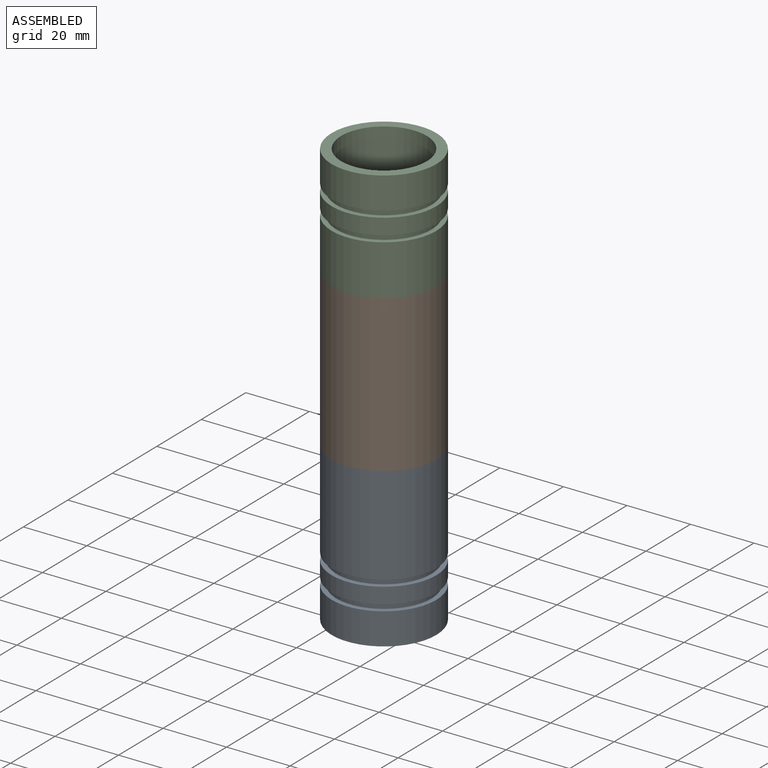
[diagram: assembled view]
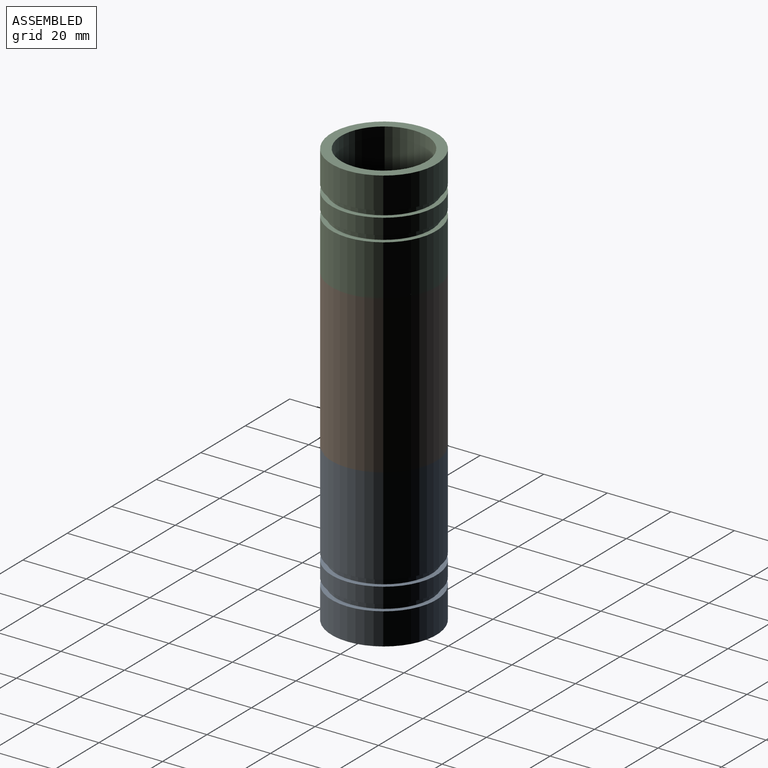
[diagram: assembled view, second angle]
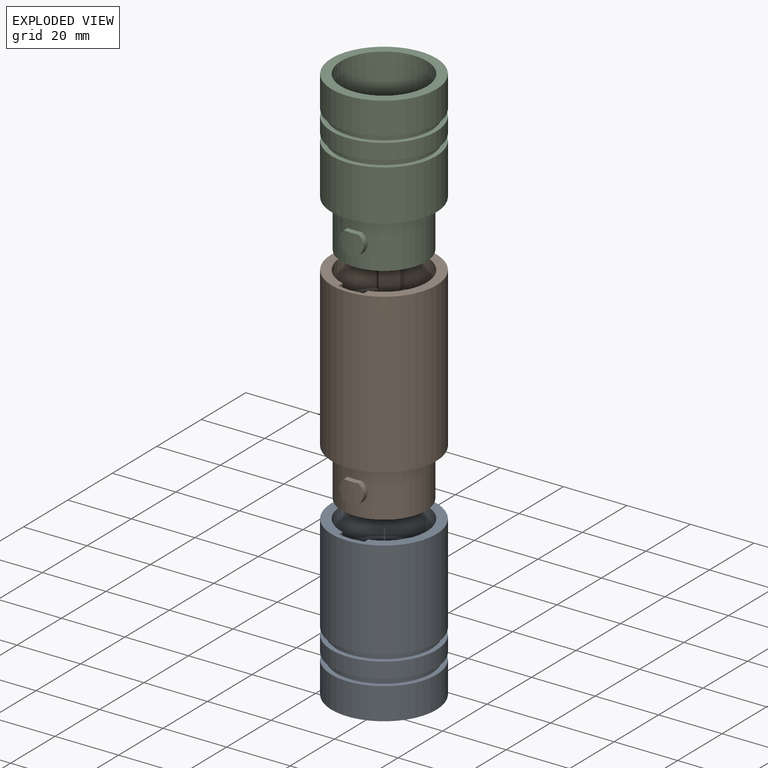
[diagram: exploded view]
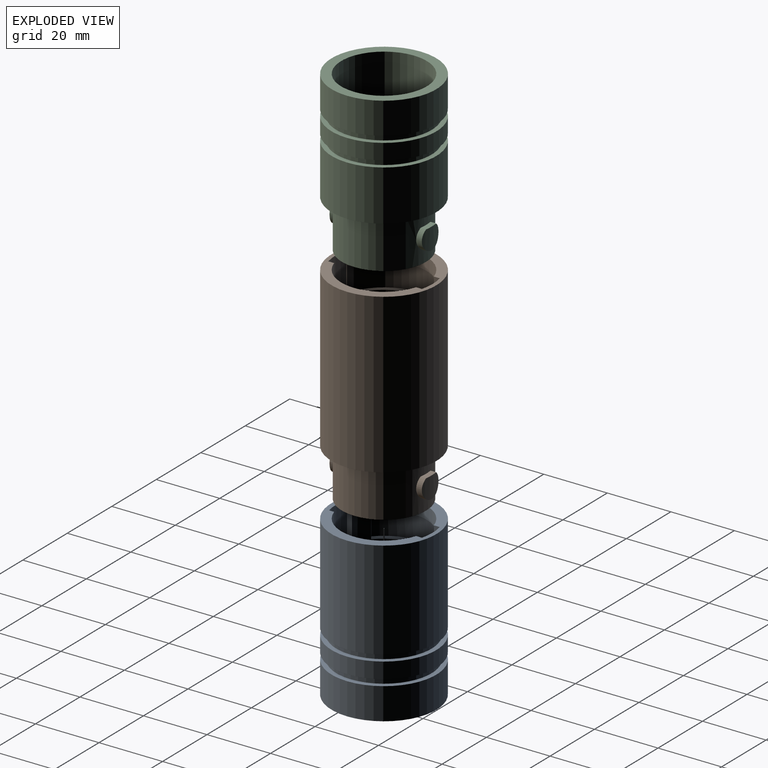
[diagram: exploded view, second angle]
ASSEMBLY  parts=3 mates=2
PART A: 32 faces, bbox 33x33x50 mm
  f0: cylinder r=13.5mm len=32.5mm, axis (0,0,-1), area 2756.7mm2, adj f6,f23
  f1: cylinder r=13.5mm len=27mm, axis (0,0,-1), area 544mm2, adj f2,f3,f14,f16,f17,f18,f20,f22
  f2: cylinder r=13.5mm len=23.15mm, axis (0,0,-1), area 115.2mm2, adj f1,f3,f19,f21
  f3: plane 33x33mm, normal (0,0,1), area 256.4mm2, adj f1,f2,f12,f14,f15,f16,f18,f19
  f4: cylinder r=15mm len=30mm, axis (0,0,-1), area 188.5mm2, adj f10,f13
  f5: cylinder r=15mm len=30mm, axis (0,0,-1), area 188.5mm2, adj f8,f11
  f6: plane 33x33mm, normal (0,0,-1), area 282.7mm2, adj f0,f7
  f7: cylinder r=16.5mm len=33mm, axis (0,0,-1), area 1036.7mm2, adj f6,f8
  f8: plane 33x33mm, normal (0,0,1), area 148.4mm2, adj f5,f7
  f9: cylinder r=16.5mm len=33mm, axis (0,0,-1), area 518.4mm2, adj f10,f11
  f10: plane 33x33mm, normal (0,0,1), area 148.4mm2, adj f4,f9
  f11: plane 33x33mm, normal (0,0,-1), area 148.4mm2, adj f5,f9
  f12: cylinder r=16.5mm len=33mm, axis (0,0,-1), area 3213.8mm2, adj f3,f13
  f13: plane 33x33mm, normal (0,0,-1), area 148.4mm2, adj f4,f12
  f14: plane 12x1.56mm, normal (1,0,0), area 18.8mm2, adj f1,f3,f15,f17
  f15: cylinder r=15mm len=26.09mm, axis (0,0,-1), area 353.1mm2, adj f3,f14,f16,f17,f29,f30
  f16: plane 4x1.56mm, normal (-1,0,0), area 6.3mm2, adj f1,f3,f15,f29
  f17: plane 26.09x19mm, normal (0,0,1), area 57.8mm2, adj f1,f14,f15,f30
  f18: plane 12x1.56mm, normal (-1,0,0), area 18.8mm2, adj f1,f3,f20,f25
  f19: plane 4x1.56mm, normal (1,0,0), area 6.3mm2, adj f2,f3,f21,f26
  f20: plane 26.52x19.32mm, normal (0,0,1), area 67.9mm2, adj f1,f18,f22,f25,f27,f28
  f21: plane 25.97x11.25mm, normal (0,0,-1), area 53.7mm2, adj f2,f19,f22,f26,f27,f28
  f22: plane 8x1.32mm, normal (-0.53,0.85,0), area 12.5mm2, adj f1,f20,f21,f27
  f23: plane 27x27mm, normal (0,0,-1), area 562.9mm2, adj f0,f31
  f24: plane 27x27mm, normal (0,0,1), area 562.9mm2, adj f1,f31
  f25: plane 12x0.24mm, normal (-0.96,0.27,0), area 3mm2, adj f3,f18,f20,f28
  f26: plane 4x0.24mm, normal (0.96,0.27,0), area 1mm2, adj f3,f19,f21,f28
  f27: plane 8x0.19mm, normal (-0.74,0.67,0), area 2mm2, adj f20,f21,f22,f28
  f28: cylinder r=15.25mm len=26.52mm, axis (0,0,-1), area 359mm2, adj f3,f20,f21,f25,f26,f27
  f29: plane 25.55x11mm, normal (0,0,-1), area 45.6mm2, adj f1,f15,f16,f30
  f30: plane 8x1.32mm, normal (0.53,-0.85,0), area 12.5mm2, adj f1,f15,f17,f29
  f31: cylinder r=1.75mm len=3.5mm, axis (0,0,1), area 22mm2, adj f23,f24
PART B: 37 faces, bbox 33x33x65 mm
  f0: bspline ~7.5x7mm, area 4.7mm2, adj f5,f8,f35
  f1: bspline ~7.5x7mm, area 4.7mm2, adj f3,f8,f36
  f2: cylinder r=15mm len=7.5mm, axis (0,0,1), area 42.2mm2, adj f3,f36
  f3: cylinder r=3.75mm len=7.5mm, axis (0,1,0), area 28.5mm2, adj f1,f2,f36
  f4: cylinder r=15mm len=7.5mm, axis (0,0,1), area 42.2mm2, adj f5,f35
  f5: cylinder r=3.75mm len=7.5mm, axis (0,1,0), area 28.5mm2, adj f0,f4,f35
  f6: plane 33x33mm, normal (0,0,-1), area 303.8mm2, adj f7,f8
  f7: cylinder r=16.5mm len=50mm, axis (0,0,-1), area 5183.6mm2, adj f6,f33
  f8: cylinder r=13.25mm len=26.5mm, axis (0,0,-1), area 1165.7mm2, adj f0,f1,f6,f9,f35,f36
  f9: plane 26.5x26.5mm, normal (0,0,-1), area 541.9mm2, adj f8,f34
  f10: plane 25x25mm, normal (0,0,1), area 481.3mm2, adj f11,f34
  f11: cylinder r=12.5mm len=30mm, axis (0,0,1), area 2356.2mm2, adj f10,f17
  f12: plane 8x0.19mm, normal (0.74,0.67,0), area 2mm2, adj f13,f14,f15,f25
  f13: plane 26.52x19.32mm, normal (0,0,1), area 67.9mm2, adj f12,f14,f25,f26,f27,f28
  f14: plane 8x1.32mm, normal (0.53,0.85,0), area 12.5mm2, adj f12,f13,f15,f28
  f15: plane 25.97x11.25mm, normal (0,0,-1), area 53.7mm2, adj f12,f14,f23,f24,f25,f28
  f16: plane 8x1.32mm, normal (-0.53,-0.85,0), area 12.5mm2, adj f18,f19,f20,f28
  f17: plane 27x27mm, normal (0,0,1), area 81.7mm2, adj f11,f28
  f18: plane 25.55x11mm, normal (0,0,-1), area 45.6mm2, adj f16,f19,f29,f30
  f19: cylinder r=15mm len=25.55mm, axis (0,0,1), area 255.9mm2, adj f16,f18,f20,f31
  f20: plane 26.34x19.07mm, normal (0,0,1), area 59.8mm2, adj f16,f19,f21,f22,f28,f31,f32
  f21: plane 12x0.24mm, normal (-0.96,-0.27,0), area 3mm2, adj f20,f22,f32,f33
  f22: plane 12x1.56mm, normal (-1,0,0), area 18.8mm2, adj f20,f21,f28,f33
  f23: plane 4x1.56mm, normal (-1,0,0), area 6.3mm2, adj f15,f24,f28,f33
  f24: plane 4x0.24mm, normal (-0.96,0.27,0), area 1mm2, adj f15,f23,f25,f33
  f25: cylinder r=15.25mm len=26.52mm, axis (0,0,-1), area 359mm2, adj f12,f13,f15,f24,f26,f33
  f26: plane 12x0.24mm, normal (0.96,0.27,0), area 3mm2, adj f13,f25,f27,f33
  f27: plane 12x1.56mm, normal (1,0,0), area 18.8mm2, adj f13,f26,f28,f33
  f28: cylinder r=13.5mm len=27mm, axis (0,0,-1), area 544mm2, adj f13,f14,f15,f16,f17,f20,f22,f23
  f29: cylinder r=13.5mm len=23.15mm, axis (0,0,-1), area 115.2mm2, adj f18,f28,f30,f33
  f30: plane 4x1.56mm, normal (1,0,0), area 6.3mm2, adj f18,f29,f31,f33
  f31: plane 12x0.24mm, normal (0.96,-0.27,0), area 3mm2, adj f19,f20,f30,f32,f33
  f32: cylinder r=15.25mm len=12mm, axis (0,0,-1), area 98.8mm2, adj f20,f21,f31,f33
  f33: plane 33x33mm, normal (0,0,1), area 254.3mm2, adj f7,f21,f22,f23,f24,f25,f26,f27
  f34: cylinder r=1.75mm len=19.5mm, axis (0,0,-1), area 214.4mm2, adj f9,f10
  f35: plane 4.5x1.94mm, normal (0,0,1), area 7.9mm2, adj f0,f4,f5,f8
  f36: plane 4.5x1.94mm, normal (0,0,1), area 7.9mm2, adj f1,f2,f3,f8
PART C: 23 faces, bbox 33x33x50 mm
  f0: cylinder r=13.5mm len=30mm, axis (0,0,-1), area 2544.7mm2, adj f4,f12
  f1: cylinder r=15mm len=30mm, axis (0,0,-1), area 188.5mm2, adj f8,f11
  f2: cylinder r=15mm len=30mm, axis (0,0,-1), area 188.5mm2, adj f6,f9
  f3: plane 33x33mm, normal (0,0,1), area 303.8mm2, adj f10,f15
  f4: plane 33x33mm, normal (0,0,-1), area 282.7mm2, adj f0,f5
  f5: cylinder r=16.5mm len=33mm, axis (0,0,-1), area 1036.7mm2, adj f4,f6
  f6: plane 33x33mm, normal (0,0,1), area 148.4mm2, adj f2,f5
  f7: cylinder r=16.5mm len=33mm, axis (0,0,-1), area 518.4mm2, adj f8,f9
  f8: plane 33x33mm, normal (0,0,1), area 148.4mm2, adj f1,f7
  f9: plane 33x33mm, normal (0,0,-1), area 148.4mm2, adj f2,f7
  f10: cylinder r=16.5mm len=33mm, axis (0,0,-1), area 1658.8mm2, adj f3,f11
  f11: plane 33x33mm, normal (0,0,-1), area 148.4mm2, adj f1,f10
  f12: plane 27x27mm, normal (0,0,-1), area 572.6mm2, adj f0
  f13: bspline ~7.5x6.75mm, area 4.7mm2, adj f15,f20,f21
  f14: bspline ~7.5x6.75mm, area 4.7mm2, adj f15,f18,f22
  f15: cylinder r=13.25mm len=26.5mm, axis (0,0,-1), area 1165.7mm2, adj f3,f13,f14,f16,f21,f22
  f16: plane 26.5x26.5mm, normal (0,0,1), area 551.5mm2, adj f15
  f17: cylinder r=15mm len=7.51mm, axis (0,0,-1), area 42.2mm2, adj f18,f22
  f18: cylinder r=3.75mm len=7.5mm, axis (0,1,0), area 28.5mm2, adj f14,f17,f22
  f19: cylinder r=15mm len=7.51mm, axis (0,0,-1), area 42.2mm2, adj f20,f21
  f20: cylinder r=3.75mm len=7.5mm, axis (0,1,0), area 28.5mm2, adj f13,f19,f21
  f21: plane 4.5x1.94mm, normal (0,0,-1), area 7.9mm2, adj f13,f15,f19,f20
  f22: plane 4.5x1.94mm, normal (0,0,-1), area 7.9mm2, adj f14,f15,f17,f18
PLACE A t=(17.42,-54.07,18.61)mm
PLACE B rot(axis=(1,0,0),0deg) t=(17.42,-54.07,68.11)mm
PLACE C rot(axis=(0,-1,0),180deg) t=(17.42,-54.07,152.61)mm
MATE fastened B.f8 <-> A.f0  axis (0,0,-1) through (17.42,-54.07,53.11)mm
MATE fastened B.f28 <-> C.f0  axis (0,0,1) through (17.42,-54.07,102.61)mm
